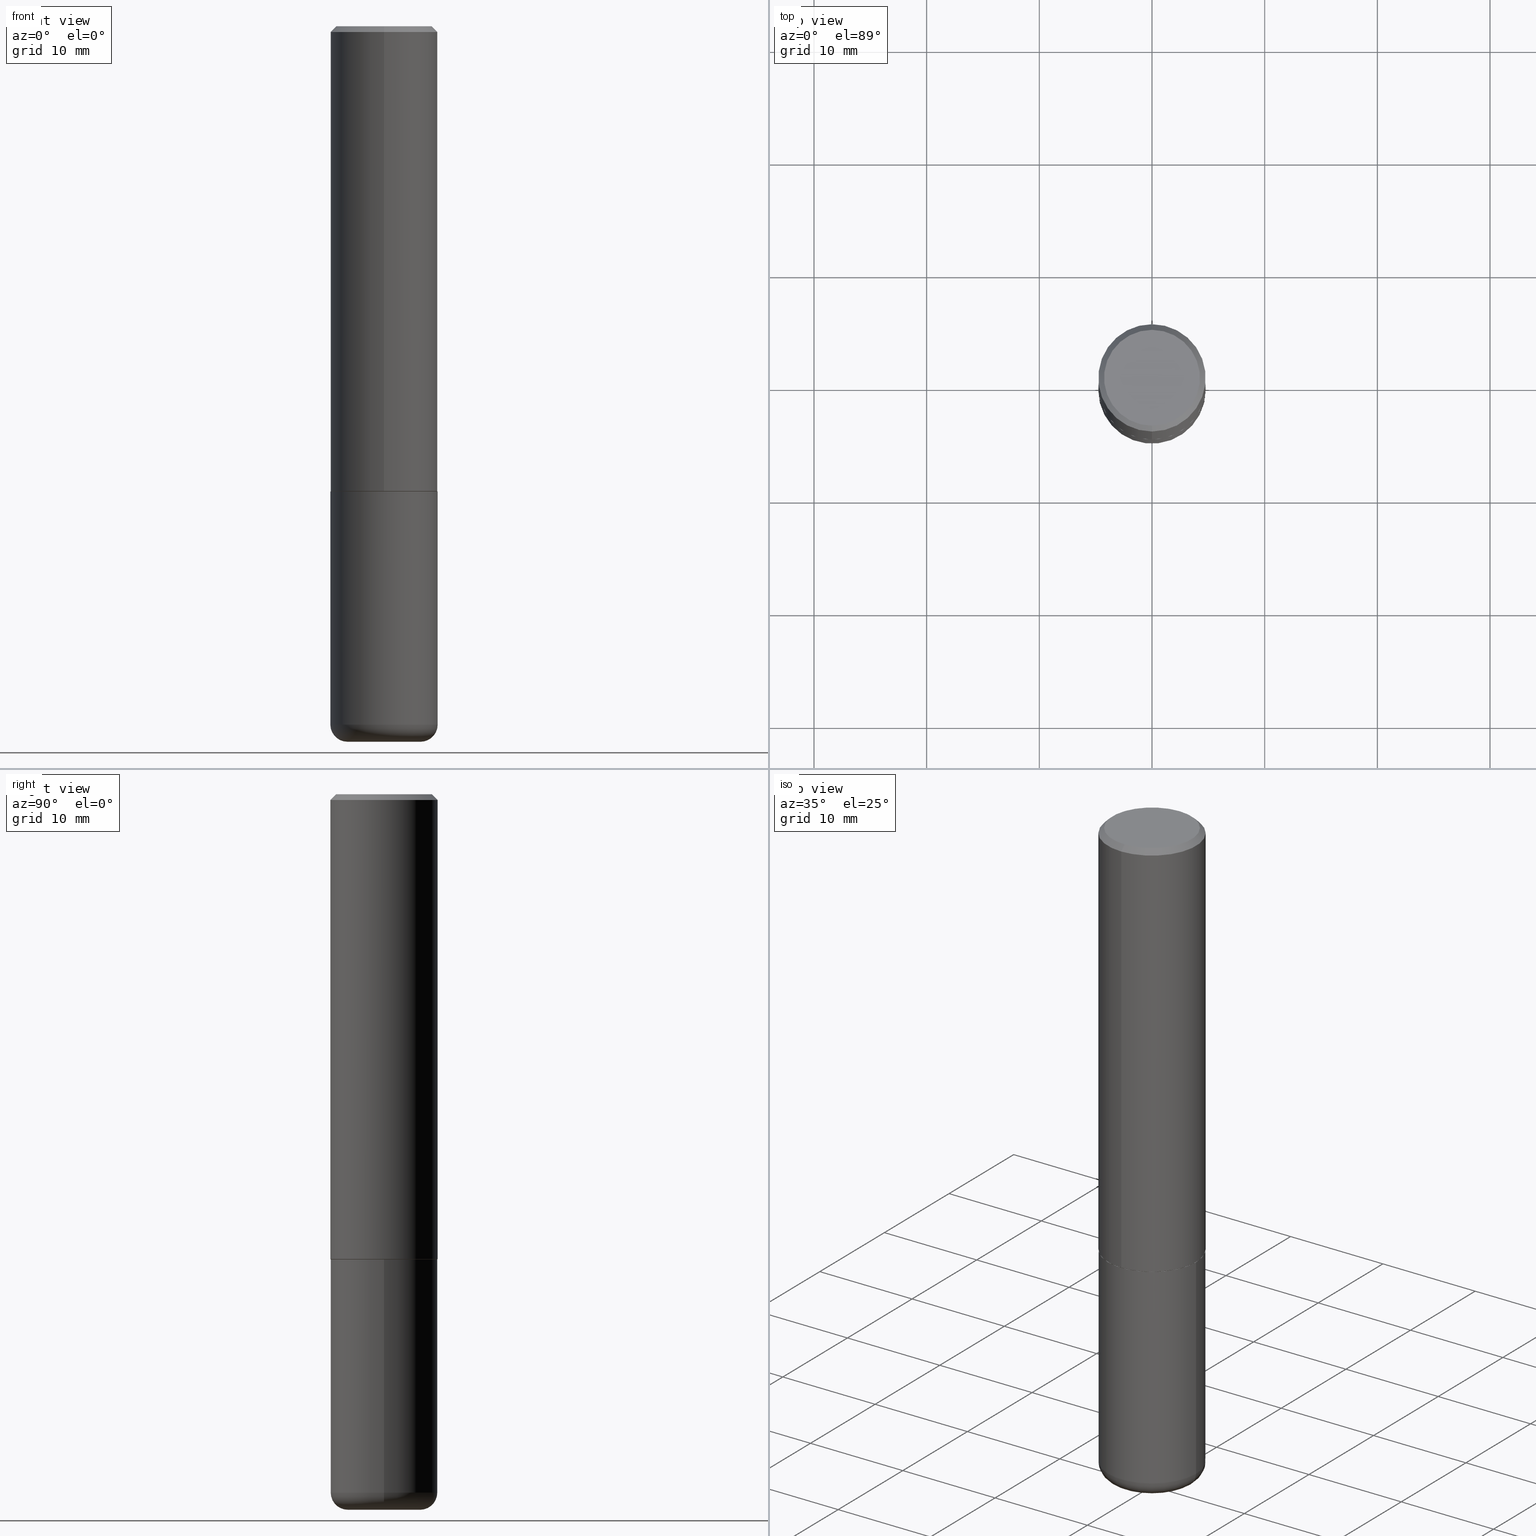
[diagram: canonical four-view strip — front | top / right | iso, engineering-drawing reading convention]
A machine part, canonical four-view strip (front | top / right | iso — engineering-drawing reading convention). The complete STEP part file that produces these views, byte-faithful:
ISO-10303-21;
HEADER;
FILE_DESCRIPTION (( 'STEP AP203' ),
    '1' );
FILE_NAME ('36113.STEP',
    '2024-03-01T15:43:17',
    ( '' ),
    ( '' ),
    'SwSTEP 2.0',
    'SolidWorks 2023',
    '' );
FILE_SCHEMA (( 'CONFIG_CONTROL_DESIGN' ));
ENDSEC;

DATA;
#1 = DIRECTION ( 'NONE',  ( -2.445663447522104049E-29, 3.491202601370310888E-15, 1.000000000000000000 ) ) ;
#2 = EDGE_CURVE ( 'NONE', #407, #122, #176, .T. ) ;
#3 = DIRECTION ( 'NONE',  ( -6.982962677686266711E-15, -1.000000000000000000, 3.491481338843145583E-15 ) ) ;
#4 = APPROVAL_PERSON_ORGANIZATION ( #184, #329, #110 ) ;
#5 = DIRECTION ( 'NONE',  ( -1.000000000000000000, 6.982962677686265922E-15, -4.876176775795935793E-29 ) ) ;
#6 = DIRECTION ( 'NONE',  ( 6.982962677686266711E-15, 1.000000000000000000, -3.483106191921935949E-15 ) ) ;
#7 = EDGE_CURVE ( 'NONE', #244, #278, #225, .T. ) ;
#8 = ORIENTED_EDGE ( 'NONE', *, *, #59, .F. ) ;
#9 = DIRECTION ( 'NONE',  ( 2.445663447522104049E-29, -3.491202601370310888E-15, -1.000000000000000000 ) ) ;
#10 = CARTESIAN_POINT ( 'NONE',  ( 5.966943887091733341E-29, -8.519214466777275048E-15, -2.440000000000000391 ) ) ;
#11 = APPROVAL_PERSON_ORGANIZATION ( #298, #113, #302 ) ;
#12 = CARTESIAN_POINT ( 'NONE',  ( 0.000000000000000000, 0.000000000000000000, 0.000000000000000000 ) ) ;
#13 = AXIS2_PLACEMENT_3D ( 'NONE', #318, #71, #196 ) ;
#14 = PERSON_AND_ORGANIZATION ( #106, #150 ) ;
#15 = DIRECTION ( 'NONE',  ( -6.982962677686266711E-15, -1.000000000000000000, 3.483106191921935949E-15 ) ) ;
#16 = ORIENTED_EDGE ( 'NONE', *, *, #228, .F. ) ;
#17 = DATE_AND_TIME ( #245, #137 ) ;
#18 = ADVANCED_BREP_SHAPE_REPRESENTATION ( '36113', ( #325, #330, #405 ), #183 ) ;
#19 = ORIENTED_EDGE ( 'NONE', *, *, #87, .T. ) ;
#20 = COORDINATED_UNIVERSAL_TIME_OFFSET ( 5, 0, .BEHIND. ) ;
#21 = EDGE_CURVE ( 'NONE', #107, #89, #211, .T. ) ;
#22 =( NAMED_UNIT ( * ) PLANE_ANGLE_UNIT ( ) SI_UNIT ( $, .RADIAN. ) );
#23 = ORIENTED_EDGE ( 'NONE', *, *, #239, .T. ) ;
#24 = CIRCLE ( 'NONE', #109, 0.1874999999999999722 ) ;
#25 = DIRECTION ( 'NONE',  ( 1.000000000000000000, -6.982962677686266711E-15, 4.876176775795935793E-29 ) ) ;
#26 = ORIENTED_EDGE ( 'NONE', *, *, #228, .T. ) ;
#27 = APPROVAL_DATE_TIME ( #57, #217 ) ;
#28 = CARTESIAN_POINT ( 'NONE',  ( 5.966943887091733341E-29, -8.519214466777275048E-15, -2.440000000000000391 ) ) ;
#29 = ORIENTED_EDGE ( 'NONE', *, *, #412, .F. ) ;
#30 = CARTESIAN_POINT ( 'NONE',  ( -1.286343374582161379E-15, -0.1875000000000000555, -0.01999999999999938979 ) ) ;
#31 = FACE_OUTER_BOUND ( 'NONE', #108, .T. ) ;
#32 = CARTESIAN_POINT ( 'NONE',  ( -1.309305502066136748E-15, -0.1875000000000058842, -1.623999999999999666 ) ) ;
#33 = DIRECTION ( 'NONE',  ( -2.445663447522104049E-29, 3.491202601370311283E-15, 1.000000000000000000 ) ) ;
#34 = DIRECTION ( 'NONE',  ( -2.445663447522104049E-29, 3.491202601370311283E-15, 1.000000000000000000 ) ) ;
#35 = CARTESIAN_POINT ( 'NONE',  ( 3.973886810050848091E-29, -5.673657175620113002E-15, -1.625000000000000222 ) ) ;
#36 = CARTESIAN_POINT ( 'NONE',  ( 3.974203102223419290E-29, -5.673204227226755539E-15, -1.625000000000000000 ) ) ;
#37 = CONICAL_SURFACE ( 'NONE', #328, 0.1864999999999999714, 0.7853981633976704346 ) ;
#38 = FACE_OUTER_BOUND ( 'NONE', #271, .T. ) ;
#39 = EDGE_CURVE ( 'NONE', #411, #182, #236, .T. ) ;
#40 = PLANE ( 'NONE',  #105 ) ;
#41 = ORIENTED_EDGE ( 'NONE', *, *, #239, .F. ) ;
#42 = CARTESIAN_POINT ( 'NONE',  ( 0.1875000000000000278, -6.982962677686288010E-15, -1.625000000000000222 ) ) ;
#43 = AXIS2_PLACEMENT_3D ( 'NONE', #332, #363, #15 ) ;
#44 = EDGE_CURVE ( 'NONE', #278, #182, #357, .T. ) ;
#45 = CIRCLE ( 'NONE', #187, 0.1275000000000000022 ) ;
#46 = PERSON_AND_ORGANIZATION_ROLE ( 'creator' ) ;
#47 = EDGE_LOOP ( 'NONE', ( #8, #237 ) ) ;
#48 = EDGE_CURVE ( 'NONE', #312, #135, #391, .T. ) ;
#49 = VERTEX_POINT ( 'NONE', #32 ) ;
#50 = PERSON_AND_ORGANIZATION_ROLE ( 'classification_officer' ) ;
#51 = CARTESIAN_POINT ( 'NONE',  ( 6.113672015462842613E-29, -8.728703347107864943E-15, -2.500000000000000000 ) ) ;
#52 = PRODUCT_DEFINITION ( 'UNKNOWN', '', #61, #322 ) ;
#53 = ORIENTED_EDGE ( 'NONE', *, *, #358, .T. ) ;
#54 = PERSON_AND_ORGANIZATION_ROLE ( 'design_supplier' ) ;
#55 = DIRECTION ( 'NONE',  ( -6.982962677686265922E-15, -1.000000000000000000, 3.491202601370310888E-15 ) ) ;
#56 = ORIENTED_EDGE ( 'NONE', *, *, #321, .T. ) ;
#57 = DATE_AND_TIME ( #344, #131 ) ;
#58 = CARTESIAN_POINT ( 'NONE',  ( -0.1875000000000000278, -5.764168191648507360E-15, -1.625000000000000222 ) ) ;
#59 = EDGE_CURVE ( 'NONE', #122, #407, #157, .T. ) ;
#60 = TOROIDAL_SURFACE ( 'NONE', #382, 0.1275000000000000022, 0.05999999999999994227 ) ;
#61 = PRODUCT_DEFINITION_FORMATION_WITH_SPECIFIED_SOURCE ( 'ANY', '', #303, .NOT_KNOWN. ) ;
#62 = ORIENTED_EDGE ( 'NONE', *, *, #59, .T. ) ;
#63 = CYLINDRICAL_SURFACE ( 'NONE', #130, 0.1874999999999999722 ) ;
#64 = ORIENTED_EDGE ( 'NONE', *, *, #168, .T. ) ;
#65 = FACE_OUTER_BOUND ( 'NONE', #409, .T. ) ;
#66 = CARTESIAN_POINT ( 'NONE',  ( 3.974203102223419290E-29, -5.673204227226755539E-15, -1.625000000000000000 ) ) ;
#67 = FACE_OUTER_BOUND ( 'NONE', #301, .T. ) ;
#68 = DIRECTION ( 'NONE',  ( 1.000000000000000000, -6.982962677686274599E-15, 0.000000000000000000 ) ) ;
#69 = EDGE_CURVE ( 'NONE', #182, #411, #293, .T. ) ;
#70 = DIRECTION ( 'NONE',  ( 1.000000000000000000, -6.982962677686263555E-15, 0.000000000000000000 ) ) ;
#71 = DIRECTION ( 'NONE',  ( -2.445468806185136597E-29, 3.491481338843145583E-15, 1.000000000000000000 ) ) ;
#72 = FACE_OUTER_BOUND ( 'NONE', #175, .T. ) ;
#73 = UNCERTAINTY_MEASURE_WITH_UNIT (LENGTH_MEASURE( 1.000000000000000082E-05 ), #304, 'distance_accuracy_value', 'NONE');
#74 = CARTESIAN_POINT ( 'NONE',  ( 4.891326895044218398E-31, -6.982405202740636519E-17, -0.02000000000000004205 ) ) ;
#75 = EDGE_CURVE ( 'NONE', #122, #49, #270, .T. ) ;
#76 = AXIS2_PLACEMENT_3D ( 'NONE', #350, #33, #190 ) ;
#77 = DIRECTION ( 'NONE',  ( -2.445663447522104049E-29, 3.491202601370311283E-15, 1.000000000000000000 ) ) ;
#78 = FACE_OUTER_BOUND ( 'NONE', #365, .T. ) ;
#79 = EDGE_LOOP ( 'NONE', ( #353, #343 ) ) ;
#80 = CARTESIAN_POINT ( 'NONE',  ( 1.169646248512448806E-15, 0.1674999999999998990, -5.378461426017720867E-16 ) ) ;
#81 = LOCAL_TIME ( 10, 43, 17.00000000000000000, #374 ) ;
#82 = FACE_OUTER_BOUND ( 'NONE', #167, .T. ) ;
#83 = CONICAL_SURFACE ( 'NONE', #346, 0.1874999999999999722, 0.7853981633974472798 ) ;
#84 = DIRECTION ( 'NONE',  ( -2.445468806185136597E-29, 3.491481338843145583E-15, 1.000000000000000000 ) ) ;
#85 = ORIENTED_EDGE ( 'NONE', *, *, #412, .T. ) ;
#86 = DATE_AND_TIME ( #275, #81 ) ;
#87 = EDGE_CURVE ( 'NONE', #90, #411, #126, .T. ) ;
#88 = ORIENTED_EDGE ( 'NONE', *, *, #75, .F. ) ;
#89 = VERTEX_POINT ( 'NONE', #159 ) ;
#90 = VERTEX_POINT ( 'NONE', #129 ) ;
#91 = PERSON_AND_ORGANIZATION ( #106, #150 ) ;
#92 = ORIENTED_EDGE ( 'NONE', *, *, #48, .T. ) ;
#93 = CC_DESIGN_PERSON_AND_ORGANIZATION_ASSIGNMENT ( #338, #50, ( #336 ) ) ;
#94 = DIRECTION ( 'NONE',  ( -2.445468806185136597E-29, 3.491481338843145583E-15, 1.000000000000000000 ) ) ;
#95 = DIRECTION ( 'NONE',  ( 0.000000000000000000, 0.000000000000000000, 1.000000000000000000 ) ) ;
#96 = CIRCLE ( 'NONE', #214, 0.1275000000000000022 ) ;
#97 = CARTESIAN_POINT ( 'NONE',  ( 0.1874999999999999722, -1.309305502066174811E-15, 9.142831454617378210E-30 ) ) ;
#98 = DIRECTION ( 'NONE',  ( -2.445468806185136597E-29, 3.491481338843145583E-15, 1.000000000000000000 ) ) ;
#99 = DIRECTION ( 'NONE',  ( 2.445663447522104049E-29, -3.491202601370311283E-15, -1.000000000000000000 ) ) ;
#100 = CIRCLE ( 'NONE', #355, 0.1875000000000002220 ) ;
#101 = DIRECTION ( 'NONE',  ( -2.445468806185136597E-29, 3.491481338843145583E-15, 1.000000000000000000 ) ) ;
#102 = DIRECTION ( 'NONE',  ( -2.445468806185136597E-29, 3.491481338843145583E-15, 1.000000000000000000 ) ) ;
#103 = DIRECTION ( 'NONE',  ( -2.445468806185136597E-29, 3.491481338843145583E-15, 1.000000000000000000 ) ) ;
#104 = DIRECTION ( 'NONE',  ( 1.000000000000000000, 0.000000000000000000, 0.000000000000000000 ) ) ;
#105 = AXIS2_PLACEMENT_3D ( 'NONE', #197, #396, #366 ) ;
#106 = PERSON ( 'UNSPECIFIED', 'UNSPECIFIED', 'UNSPECIFIED', ('UNSPECIFIED'), ('UNSPECIFIED'), ('UNSPECIFIED') ) ;
#107 = VERTEX_POINT ( 'NONE', #349 ) ;
#108 = EDGE_LOOP ( 'NONE', ( #333, #112, #114, #233 ) ) ;
#109 = AXIS2_PLACEMENT_3D ( 'NONE', #10, #102, #327 ) ;
#110 = APPROVAL_ROLE ( '' ) ;
#111 = EDGE_CURVE ( 'NONE', #107, #178, #96, .T. ) ;
#112 = ORIENTED_EDGE ( 'NONE', *, *, #397, .T. ) ;
#113 = APPROVAL ( #238, 'UNSPECIFIED' ) ;
#114 = ORIENTED_EDGE ( 'NONE', *, *, #21, .T. ) ;
#115 = APPROVAL_DATE_TIME ( #17, #113 ) ;
#116 = CONICAL_SURFACE ( 'NONE', #348, 0.1874999999999999722, 0.7853981633974472798 ) ;
#117 = CYLINDRICAL_SURFACE ( 'NONE', #164, 0.1874999999999999722 ) ;
#118 = ORIENTED_EDGE ( 'NONE', *, *, #393, .T. ) ;
#119 = APPROVAL_ROLE ( '' ) ;
#120 = CARTESIAN_POINT ( 'NONE',  ( 3.971757438775897765E-29, -5.669713024625386356E-15, -1.624000000000000110 ) ) ;
#121 = DIMENSIONAL_EXPONENTS ( 1.000000000000000000, 0.000000000000000000, 0.000000000000000000, 0.000000000000000000, 0.000000000000000000, 0.000000000000000000, 0.000000000000000000 ) ;
#122 = VERTEX_POINT ( 'NONE', #317 ) ;
#123 = LINE ( 'NONE', #372, #193 ) ;
#124 = CARTESIAN_POINT ( 'NONE',  ( -0.1275000000000000022, -7.613272478683147690E-15, -2.440000000000000391 ) ) ;
#125 = ORIENTED_EDGE ( 'NONE', *, *, #139, .T. ) ;
#126 = LINE ( 'NONE', #249, #265 ) ;
#127 = DIRECTION ( 'NONE',  ( -2.445663447522104049E-29, 3.491202601370311283E-15, 1.000000000000000000 ) ) ;
#128 = DIRECTION ( 'NONE',  ( 1.000000000000000000, -6.982962677686265133E-15, 4.883557194083112340E-29 ) ) ;
#129 = CARTESIAN_POINT ( 'NONE',  ( 1.332267629550208753E-15, 0.1874999999999945599, -1.624000000000000776 ) ) ;
#130 = AXIS2_PLACEMENT_3D ( 'NONE', #279, #98, #313 ) ;
#131 = LOCAL_TIME ( 10, 43, 17.00000000000000000, #213 ) ;
#132 = DIRECTION ( 'NONE',  ( -6.982962677686266711E-15, -1.000000000000000000, 3.483106191921935949E-15 ) ) ;
#133 = ADVANCED_FACE ( 'NONE', ( #31 ), #60, .T. ) ;
#134 = FACE_OUTER_BOUND ( 'NONE', #47, .T. ) ;
#135 = VERTEX_POINT ( 'NONE', #58 ) ;
#136 = AXIS2_PLACEMENT_3D ( 'NONE', #319, #413, #216 ) ;
#137 = LOCAL_TIME ( 10, 43, 17.00000000000000000, #151 ) ;
#138 = CARTESIAN_POINT ( 'NONE',  ( 1.325162202192626283E-15, 0.1864999999999943092, -1.625000000000000666 ) ) ;
#139 = EDGE_CURVE ( 'NONE', #178, #326, #368, .T. ) ;
#140 = CLOSED_SHELL ( 'NONE', ( #289, #248, #160, #364, #199, #269, #367, #306 ) ) ;
#141 = EDGE_CURVE ( 'NONE', #326, #89, #258, .T. ) ;
#142 = ORIENTED_EDGE ( 'NONE', *, *, #44, .T. ) ;
#143 = SECURITY_CLASSIFICATION_LEVEL ( 'unclassified' ) ;
#144 = DIRECTION ( 'NONE',  ( -2.445663447522104049E-29, 3.491202601370310888E-15, 1.000000000000000000 ) ) ;
#145 = ORIENTED_EDGE ( 'NONE', *, *, #168, .F. ) ;
#146 = PERSON_AND_ORGANIZATION ( #106, #150 ) ;
#147 = ORIENTED_EDGE ( 'NONE', *, *, #39, .F. ) ;
#148 = DATE_TIME_ROLE ( 'classification_date' ) ;
#149 = AXIS2_PLACEMENT_3D ( 'NONE', #80, #9, #261 ) ;
#150 = ORGANIZATION ( 'UNSPECIFIED', 'UNSPECIFIED', '' ) ;
#151 = COORDINATED_UNIVERSAL_TIME_OFFSET ( 5, 0, .BEHIND. ) ;
#152 = CARTESIAN_POINT ( 'NONE',  ( 4.891326895044218398E-31, -6.982405202740636519E-17, -0.02000000000000004205 ) ) ;
#153 = DIRECTION ( 'NONE',  ( -2.445663447522104049E-29, 3.491202601370311283E-15, 1.000000000000000000 ) ) ;
#154 = ORIENTED_EDGE ( 'NONE', *, *, #69, .T. ) ;
#155 = CYLINDRICAL_SURFACE ( 'NONE', #234, 0.1875000000000001110 ) ;
#156 = DIRECTION ( 'NONE',  ( -2.445468806185136877E-29, 3.491481338843145188E-15, 1.000000000000000000 ) ) ;
#157 = CIRCLE ( 'NONE', #262, 0.1864999999999999714 ) ;
#158 = DIRECTION ( 'NONE',  ( -2.445468806185136597E-29, 3.491481338843145583E-15, 1.000000000000000000 ) ) ;
#159 = CARTESIAN_POINT ( 'NONE',  ( 0.1874999999999999722, -9.828519968843450056E-15, -2.440000000000000391 ) ) ;
#160 = ADVANCED_FACE ( 'NONE', ( #257 ), #83, .T. ) ;
#161 = CARTESIAN_POINT ( 'NONE',  ( 0.1275000000000000022, -9.409542208182273423E-15, -2.440000000000000391 ) ) ;
#162 = DIRECTION ( 'NONE',  ( 2.438088387897960049E-29, -3.491481338843145188E-15, -1.000000000000000000 ) ) ;
#163 = AXIS2_PLACEMENT_3D ( 'NONE', #169, #230, #294 ) ;
#164 = AXIS2_PLACEMENT_3D ( 'NONE', #12, #84, #25 ) ;
#165 = DIRECTION ( 'NONE',  ( -2.445663447522104049E-29, 3.491202601370311283E-15, 1.000000000000000000 ) ) ;
#166 = CARTESIAN_POINT ( 'NONE',  ( 4.891326895044218398E-31, -6.982405202740636519E-17, -0.02000000000000004205 ) ) ;
#167 = EDGE_LOOP ( 'NONE', ( #145, #347, #206, #280 ) ) ;
#168 = EDGE_CURVE ( 'NONE', #326, #135, #189, .T. ) ;
#169 = CARTESIAN_POINT ( 'NONE',  ( 3.974203102223419290E-29, -5.673204227226755539E-15, -1.625000000000000000 ) ) ;
#170 = AXIS2_PLACEMENT_3D ( 'NONE', #66, #360, #222 ) ;
#171 = ADVANCED_FACE ( 'NONE', ( #65 ), #63, .T. ) ;
#172 = APPLICATION_CONTEXT ( 'configuration controlled 3d designs of mechanical parts and assemblies' ) ;
#173 = CC_DESIGN_PERSON_AND_ORGANIZATION_ASSIGNMENT ( #309, #54, ( #61 ) ) ;
#174 = ORIENTED_EDGE ( 'NONE', *, *, #44, .F. ) ;
#175 = EDGE_LOOP ( 'NONE', ( #92, #53 ) ) ;
#176 = CIRCLE ( 'NONE', #170, 0.1864999999999999714 ) ;
#177 = PERSON_AND_ORGANIZATION_ROLE ( 'design_owner' ) ;
#178 = VERTEX_POINT ( 'NONE', #410 ) ;
#179 = AXIS2_PLACEMENT_3D ( 'NONE', #161, #3, #68 ) ;
#180 = DATE_AND_TIME ( #340, #389 ) ;
#181 =( LENGTH_UNIT ( ) NAMED_UNIT ( * ) SI_UNIT ( $, .METRE. ) );
#182 = VERTEX_POINT ( 'NONE', #30 ) ;
#183 =( GEOMETRIC_REPRESENTATION_CONTEXT ( 3 ) GLOBAL_UNCERTAINTY_ASSIGNED_CONTEXT ( ( #73 ) ) GLOBAL_UNIT_ASSIGNED_CONTEXT ( ( #304, #22, #379 ) ) REPRESENTATION_CONTEXT ( 'NONE', 'WORKASPACE' ) );
#184 = PERSON_AND_ORGANIZATION ( #106, #150 ) ;
#185 = AXIS2_PLACEMENT_3D ( 'NONE', #124, #284, #310 ) ;
#186 = CC_DESIGN_DATE_AND_TIME_ASSIGNMENT ( #180, #148, ( #336 ) ) ;
#187 = AXIS2_PLACEMENT_3D ( 'NONE', #51, #345, #341 ) ;
#188 = DIRECTION ( 'NONE',  ( -2.445663447522104049E-29, 3.491202601370310888E-15, 1.000000000000000000 ) ) ;
#189 = LINE ( 'NONE', #255, #201 ) ;
#190 = DIRECTION ( 'NONE',  ( -6.982962677686265922E-15, -1.000000000000000000, 2.913971193241877216E-15 ) ) ;
#191 = CARTESIAN_POINT ( 'NONE',  ( 5.966943887091733341E-29, -8.519214466777275048E-15, -2.440000000000000391 ) ) ;
#192 = PRODUCT_DEFINITION_SHAPE ( 'NONE', 'NONE',  #52 ) ;
#193 = VECTOR ( 'NONE', #403, 39.37007874015748143 ) ;
#194 = CARTESIAN_POINT ( 'NONE',  ( -1.286343374582161379E-15, -0.1875000000000000555, -0.01999999999999938979 ) ) ;
#195 = CARTESIAN_POINT ( 'NONE',  ( 0.000000000000000000, 0.000000000000000000, 0.000000000000000000 ) ) ;
#196 = DIRECTION ( 'NONE',  ( 1.000000000000000000, -6.982962677686266711E-15, 0.000000000000000000 ) ) ;
#197 = CARTESIAN_POINT ( 'NONE',  ( 6.113672015462842613E-29, -8.728703347107864943E-15, -2.500000000000000000 ) ) ;
#198 = DIRECTION ( 'NONE',  ( -2.445468806185136597E-29, 3.491481338843145583E-15, 1.000000000000000000 ) ) ;
#199 = ADVANCED_FACE ( 'NONE', ( #388 ), #155, .T. ) ;
#200 = PLANE ( 'NONE',  #149 ) ;
#201 = VECTOR ( 'NONE', #390, 39.37007874015748143 ) ;
#202 = CC_DESIGN_APPROVAL ( #217, ( #336 ) ) ;
#203 = APPLICATION_PROTOCOL_DEFINITION ( 'international standard', 'config_control_design', 1994, #387 ) ;
#204 = ORIENTED_EDGE ( 'NONE', *, *, #7, .T. ) ;
#205 = VECTOR ( 'NONE', #215, 39.37007874015748143 ) ;
#206 = ORIENTED_EDGE ( 'NONE', *, *, #371, .T. ) ;
#207 = APPROVAL_DATE_TIME ( #86, #329 ) ;
#208 = EDGE_LOOP ( 'NONE', ( #204, #26 ) ) ;
#209 = DATE_TIME_ROLE ( 'creation_date' ) ;
#210 = CARTESIAN_POINT ( 'NONE',  ( 1.328714915871427774E-15, 0.1864999999999943092, -1.625000000000000666 ) ) ;
#211 = CIRCLE ( 'NONE', #179, 0.05999999999999994227 ) ;
#212 = ORIENTED_EDGE ( 'NONE', *, *, #87, .F. ) ;
#213 = COORDINATED_UNIVERSAL_TIME_OFFSET ( 5, 0, .BEHIND. ) ;
#214 = AXIS2_PLACEMENT_3D ( 'NONE', #252, #158, #285 ) ;
#215 = DIRECTION ( 'NONE',  ( -4.937700262165644559E-15, -0.7071067811867021158, 0.7071067811863929187 ) ) ;
#216 = DIRECTION ( 'NONE',  ( -6.982962677686265922E-15, -1.000000000000000000, 3.491202601370310888E-15 ) ) ;
#217 = APPROVAL ( #408, 'UNSPECIFIED' ) ;
#218 = DIRECTION ( 'NONE',  ( -2.445663447522104049E-29, 3.491202601370311283E-15, 1.000000000000000000 ) ) ;
#219 = CARTESIAN_POINT ( 'NONE',  ( 5.966943887091733341E-29, -8.519214466777275048E-15, -2.440000000000000391 ) ) ;
#220 = AXIS2_PLACEMENT_3D ( 'NONE', #191, #103, #362 ) ;
#221 = CC_DESIGN_APPROVAL ( #113, ( #52 ) ) ;
#222 = DIRECTION ( 'NONE',  ( -6.982962677686265922E-15, -1.000000000000000000, 2.929595703661408850E-15 ) ) ;
#223 = CLOSED_SHELL ( 'NONE', ( #171, #256, #351, #377, #133, #291 ) ) ;
#224 = FACE_OUTER_BOUND ( 'NONE', #79, .T. ) ;
#225 = CIRCLE ( 'NONE', #226, 0.1674999999999998990 ) ;
#226 = AXIS2_PLACEMENT_3D ( 'NONE', #418, #34, #386 ) ;
#227 = LINE ( 'NONE', #138, #335 ) ;
#228 = EDGE_CURVE ( 'NONE', #278, #244, #316, .T. ) ;
#229 = AXIS2_PLACEMENT_3D ( 'NONE', #28, #94, #70 ) ;
#230 = DIRECTION ( 'NONE',  ( -2.445663447522104049E-29, 3.491202601370311283E-15, 1.000000000000000000 ) ) ;
#231 = EDGE_LOOP ( 'NONE', ( #212, #23, #305, #147 ) ) ;
#232 = MECHANICAL_CONTEXT ( 'NONE', #172, 'mechanical' ) ;
#233 = ORIENTED_EDGE ( 'NONE', *, *, #141, .F. ) ;
#234 = AXIS2_PLACEMENT_3D ( 'NONE', #195, #281, #356 ) ;
#235 = APPROVAL_PERSON_ORGANIZATION ( #91, #217, #119 ) ;
#236 = CIRCLE ( 'NONE', #352, 0.1874999999999999722 ) ;
#237 = ORIENTED_EDGE ( 'NONE', *, *, #2, .F. ) ;
#238 = APPROVAL_STATUS ( 'not_yet_approved' ) ;
#239 = EDGE_CURVE ( 'NONE', #90, #49, #414, .T. ) ;
#240 = ORIENTED_EDGE ( 'NONE', *, *, #315, .T. ) ;
#241 = APPROVAL_STATUS ( 'not_yet_approved' ) ;
#242 = LOCAL_TIME ( 10, 43, 17.00000000000000000, #20 ) ;
#243 = LINE ( 'NONE', #253, #266 ) ;
#244 = VERTEX_POINT ( 'NONE', #314 ) ;
#245 = CALENDAR_DATE ( 2024, 1, 3 ) ;
#246 = DIRECTION ( 'NONE',  ( -6.982962677686265922E-15, -1.000000000000000000, 2.913971193241877216E-15 ) ) ;
#247 = ORIENTED_EDGE ( 'NONE', *, *, #75, .T. ) ;
#248 = ADVANCED_FACE ( 'NONE', ( #354 ), #283, .T. ) ;
#249 = CARTESIAN_POINT ( 'NONE',  ( 1.332267629550188440E-15, 0.1875000000000001110, -6.546004877569338093E-16 ) ) ;
#250 = CARTESIAN_POINT ( 'NONE',  ( 3.974203102223419851E-29, -5.673204227226756328E-15, -1.625000000000000222 ) ) ;
#251 = ORIENTED_EDGE ( 'NONE', *, *, #39, .T. ) ;
#252 = CARTESIAN_POINT ( 'NONE',  ( 6.113672015462842613E-29, -8.728703347107864943E-15, -2.500000000000000000 ) ) ;
#253 = CARTESIAN_POINT ( 'NONE',  ( -1.309305502066175797E-15, -0.1875000000000001110, 6.546004877569338093E-16 ) ) ;
#254 = DIRECTION ( 'NONE',  ( -6.982962677686266711E-15, -1.000000000000000000, 3.491202601370311677E-15 ) ) ;
#255 = CARTESIAN_POINT ( 'NONE',  ( -0.1874999999999999722, 1.332267629550187651E-15, -9.223003294227946589E-30 ) ) ;
#256 = ADVANCED_FACE ( 'NONE', ( #385 ), #404, .T. ) ;
#257 = FACE_OUTER_BOUND ( 'NONE', #378, .T. ) ;
#258 = CIRCLE ( 'NONE', #229, 0.1874999999999999722 ) ;
#259 = CARTESIAN_POINT ( 'NONE',  ( -1.217738394604445850E-15, -0.1674999999999998990, 6.786370219850360017E-16 ) ) ;
#260 = ORIENTED_EDGE ( 'NONE', *, *, #393, .F. ) ;
#261 = DIRECTION ( 'NONE',  ( 6.982962677686265922E-15, 1.000000000000000000, -3.491202601370310888E-15 ) ) ;
#262 = AXIS2_PLACEMENT_3D ( 'NONE', #36, #165, #342 ) ;
#263 = AXIS2_PLACEMENT_3D ( 'NONE', #361, #198, #324 ) ;
#264 = DIRECTION ( 'NONE',  ( 5.024295867789177050E-15, 0.7071067811867068897, 0.7071067811863879227 ) ) ;
#265 = VECTOR ( 'NONE', #1, 39.37007874015748143 ) ;
#266 = VECTOR ( 'NONE', #144, 39.37007874015748143 ) ;
#267 = PERSON_AND_ORGANIZATION_ROLE ( 'creator' ) ;
#268 = ORIENTED_EDGE ( 'NONE', *, *, #384, .F. ) ;
#269 = ADVANCED_FACE ( 'NONE', ( #67 ), #415, .T. ) ;
#270 = LINE ( 'NONE', #380, #205 ) ;
#271 = EDGE_LOOP ( 'NONE', ( #174, #339, #118, #251 ) ) ;
#272 = PERSON_AND_ORGANIZATION ( #106, #150 ) ;
#273 = CC_DESIGN_DATE_AND_TIME_ASSIGNMENT ( #334, #209, ( #52 ) ) ;
#274 = ORIENTED_EDGE ( 'NONE', *, *, #321, .F. ) ;
#275 = CALENDAR_DATE ( 2024, 1, 3 ) ;
#276 = AXIS2_PLACEMENT_3D ( 'NONE', #35, #162, #5 ) ;
#277 = CARTESIAN_POINT ( 'NONE',  ( 1.309305502066175205E-15, 0.1874999999999999167, -0.02000000000000069431 ) ) ;
#278 = VERTEX_POINT ( 'NONE', #259 ) ;
#279 = CARTESIAN_POINT ( 'NONE',  ( 0.000000000000000000, 0.000000000000000000, 0.000000000000000000 ) ) ;
#280 = ORIENTED_EDGE ( 'NONE', *, *, #358, .F. ) ;
#281 = DIRECTION ( 'NONE',  ( -2.445663447522104049E-29, 3.491202601370311283E-15, 1.000000000000000000 ) ) ;
#282 = AXIS2_PLACEMENT_3D ( 'NONE', #250, #188, #55 ) ;
#283 = CYLINDRICAL_SURFACE ( 'NONE', #296, 0.1875000000000001110 ) ;
#284 = DIRECTION ( 'NONE',  ( 7.105427357601001859E-15, 1.000000000000000000, -3.491481338843145583E-15 ) ) ;
#285 = DIRECTION ( 'NONE',  ( 1.000000000000000000, -6.982962677686267499E-15, 0.000000000000000000 ) ) ;
#286 = CC_DESIGN_PERSON_AND_ORGANIZATION_ASSIGNMENT ( #146, #267, ( #52 ) ) ;
#287 = CARTESIAN_POINT ( 'NONE',  ( 3.974203102223419290E-29, -5.673204227226755539E-15, -1.625000000000000000 ) ) ;
#288 = CC_DESIGN_APPROVAL ( #329, ( #61 ) ) ;
#289 = ADVANCED_FACE ( 'NONE', ( #78 ), #37, .T. ) ;
#290 = DIRECTION ( 'NONE',  ( 2.445663447522104049E-29, -3.491202601370311283E-15, -1.000000000000000000 ) ) ;
#291 = ADVANCED_FACE ( 'NONE', ( #224 ), #40, .T. ) ;
#292 = FACE_OUTER_BOUND ( 'NONE', #208, .T. ) ;
#293 = CIRCLE ( 'NONE', #43, 0.1874999999999999722 ) ;
#294 = DIRECTION ( 'NONE',  ( -6.982962677686265922E-15, -1.000000000000000000, 2.929595703661408850E-15 ) ) ;
#295 = CC_DESIGN_PERSON_AND_ORGANIZATION_ASSIGNMENT ( #272, #46, ( #61 ) ) ;
#296 = AXIS2_PLACEMENT_3D ( 'NONE', #417, #127, #254 ) ;
#297 = ORIENTED_EDGE ( 'NONE', *, *, #48, .F. ) ;
#298 = PERSON_AND_ORGANIZATION ( #106, #150 ) ;
#299 = APPLICATION_PROTOCOL_DEFINITION ( 'international standard', 'config_control_design', 1994, #172 ) ;
#300 = CC_DESIGN_PERSON_AND_ORGANIZATION_ASSIGNMENT ( #14, #177, ( #303 ) ) ;
#301 = EDGE_LOOP ( 'NONE', ( #274, #392, #247, #41 ) ) ;
#302 = APPROVAL_ROLE ( '' ) ;
#303 = PRODUCT ( '36113', '36113', '', ( #232 ) ) ;
#304 =( CONVERSION_BASED_UNIT ( 'INCH', #311 ) LENGTH_UNIT ( ) NAMED_UNIT ( #121 ) );
#305 = ORIENTED_EDGE ( 'NONE', *, *, #384, .T. ) ;
#306 = ADVANCED_FACE ( 'NONE', ( #292 ), #200, .F. ) ;
#307 = CC_DESIGN_SECURITY_CLASSIFICATION ( #336, ( #61 ) ) ;
#308 = ORIENTED_EDGE ( 'NONE', *, *, #21, .F. ) ;
#309 = PERSON_AND_ORGANIZATION ( #106, #150 ) ;
#310 = DIRECTION ( 'NONE',  ( -1.000000000000000000, 7.105427357600997914E-15, 0.000000000000000000 ) ) ;
#311 = LENGTH_MEASURE_WITH_UNIT ( LENGTH_MEASURE( 0.02539999999999999897 ), #181 );
#312 = VERTEX_POINT ( 'NONE', #42 ) ;
#313 = DIRECTION ( 'NONE',  ( 1.000000000000000000, -6.982962677686266711E-15, 4.876176775795935793E-29 ) ) ;
#314 = CARTESIAN_POINT ( 'NONE',  ( 1.239475875289311907E-15, 0.1674999999999998990, -4.909158494740175798E-16 ) ) ;
#315 = EDGE_CURVE ( 'NONE', #89, #326, #24, .T. ) ;
#316 = CIRCLE ( 'NONE', #136, 0.1674999999999998990 ) ;
#317 = CARTESIAN_POINT ( 'NONE',  ( -1.302322539388448565E-15, -0.1865000000000056335, -1.624999999999999556 ) ) ;
#318 = CARTESIAN_POINT ( 'NONE',  ( 3.973886810050848091E-29, -5.673657175620113002E-15, -1.625000000000000222 ) ) ;
#319 = CARTESIAN_POINT ( 'NONE',  ( -2.295514049680946619E-45, 3.276863229013765432E-31, 9.386058625550929724E-17 ) ) ;
#320 = PLANE ( 'NONE',  #276 ) ;
#321 = EDGE_CURVE ( 'NONE', #407, #90, #227, .T. ) ;
#322 = DESIGN_CONTEXT ( 'detailed design', #387, 'design' ) ;
#323 = DIRECTION ( 'NONE',  ( -4.851104656540958753E-15, -0.7071067811865492381, -0.7071067811865457964 ) ) ;
#324 = DIRECTION ( 'NONE',  ( 1.000000000000000000, -6.982962677686266711E-15, 0.000000000000000000 ) ) ;
#325 = MANIFOLD_SOLID_BREP ( 'Body-Move/Copy2[1]', #223 ) ;
#326 = VERTEX_POINT ( 'NONE', #359 ) ;
#327 = DIRECTION ( 'NONE',  ( 1.000000000000000000, -6.982962677686263555E-15, 0.000000000000000000 ) ) ;
#328 = AXIS2_PLACEMENT_3D ( 'NONE', #287, #77, #394 ) ;
#329 = APPROVAL ( #241, 'UNSPECIFIED' ) ;
#330 = MANIFOLD_SOLID_BREP ( 'Body-Move/Copy2[2]', #140 ) ;
#331 = VECTOR ( 'NONE', #323, 39.37007874015748143 ) ;
#332 = CARTESIAN_POINT ( 'NONE',  ( 4.891326895044218398E-31, -6.982405202740636519E-17, -0.02000000000000004205 ) ) ;
#333 = ORIENTED_EDGE ( 'NONE', *, *, #139, .F. ) ;
#334 = DATE_AND_TIME ( #400, #242 ) ;
#335 = VECTOR ( 'NONE', #264, 39.37007874015748854 ) ;
#336 = SECURITY_CLASSIFICATION ( '', '', #143 ) ;
#337 = ORIENTED_EDGE ( 'NONE', *, *, #69, .F. ) ;
#338 = PERSON_AND_ORGANIZATION ( #106, #150 ) ;
#339 = ORIENTED_EDGE ( 'NONE', *, *, #7, .F. ) ;
#340 = CALENDAR_DATE ( 2024, 1, 3 ) ;
#341 = DIRECTION ( 'NONE',  ( 1.000000000000000000, -6.982962677686267499E-15, 0.000000000000000000 ) ) ;
#342 = DIRECTION ( 'NONE',  ( -6.982962677686265922E-15, -1.000000000000000000, 2.929595703661408850E-15 ) ) ;
#343 = ORIENTED_EDGE ( 'NONE', *, *, #397, .F. ) ;
#344 = CALENDAR_DATE ( 2024, 1, 3 ) ;
#345 = DIRECTION ( 'NONE',  ( -2.445468806185136597E-29, 3.491481338843145583E-15, 1.000000000000000000 ) ) ;
#346 = AXIS2_PLACEMENT_3D ( 'NONE', #152, #99, #383 ) ;
#347 = ORIENTED_EDGE ( 'NONE', *, *, #141, .T. ) ;
#348 = AXIS2_PLACEMENT_3D ( 'NONE', #166, #290, #6 ) ;
#349 = CARTESIAN_POINT ( 'NONE',  ( 0.1275000000000000022, -9.619031088512863317E-15, -2.500000000000000000 ) ) ;
#350 = CARTESIAN_POINT ( 'NONE',  ( 3.971757438775897765E-29, -5.669713024625386356E-15, -1.624000000000000110 ) ) ;
#351 = ADVANCED_FACE ( 'NONE', ( #72 ), #320, .F. ) ;
#352 = AXIS2_PLACEMENT_3D ( 'NONE', #74, #218, #132 ) ;
#353 = ORIENTED_EDGE ( 'NONE', *, *, #111, .F. ) ;
#354 = FACE_OUTER_BOUND ( 'NONE', #401, .T. ) ;
#355 = AXIS2_PLACEMENT_3D ( 'NONE', #120, #153, #246 ) ;
#356 = DIRECTION ( 'NONE',  ( -6.982962677686266711E-15, -1.000000000000000000, 3.491202601370311677E-15 ) ) ;
#357 = LINE ( 'NONE', #194, #331 ) ;
#358 = EDGE_CURVE ( 'NONE', #135, #312, #369, .T. ) ;
#359 = CARTESIAN_POINT ( 'NONE',  ( -0.1874999999999999722, -7.186946837227088777E-15, -2.440000000000000391 ) ) ;
#360 = DIRECTION ( 'NONE',  ( -2.445663447522104049E-29, 3.491202601370311283E-15, 1.000000000000000000 ) ) ;
#361 = CARTESIAN_POINT ( 'NONE',  ( 3.973886810050848091E-29, -5.673657175620113002E-15, -1.625000000000000222 ) ) ;
#362 = DIRECTION ( 'NONE',  ( 1.000000000000000000, -6.982962677686265133E-15, 4.883557194083112340E-29 ) ) ;
#363 = DIRECTION ( 'NONE',  ( -2.445663447522104049E-29, 3.491202601370311283E-15, 1.000000000000000000 ) ) ;
#364 = ADVANCED_FACE ( 'NONE', ( #38 ), #116, .T. ) ;
#365 = EDGE_LOOP ( 'NONE', ( #62, #56, #29, #88 ) ) ;
#366 = DIRECTION ( 'NONE',  ( -1.000000000000000000, 6.982962677686265922E-15, -4.876176775795935793E-29 ) ) ;
#367 = ADVANCED_FACE ( 'NONE', ( #134 ), #406, .F. ) ;
#368 = CIRCLE ( 'NONE', #185, 0.05999999999999994227 ) ;
#369 = CIRCLE ( 'NONE', #263, 0.1875000000000000278 ) ;
#370 = LINE ( 'NONE', #97, #375 ) ;
#371 = EDGE_CURVE ( 'NONE', #89, #312, #370, .T. ) ;
#372 = CARTESIAN_POINT ( 'NONE',  ( 1.309305502066175205E-15, 0.1874999999999999167, -0.02000000000000069431 ) ) ;
#373 = EDGE_LOOP ( 'NONE', ( #395, #125, #399, #308 ) ) ;
#374 = COORDINATED_UNIVERSAL_TIME_OFFSET ( 5, 0, .BEHIND. ) ;
#375 = VECTOR ( 'NONE', #156, 39.37007874015748143 ) ;
#376 = ORIENTED_EDGE ( 'NONE', *, *, #371, .F. ) ;
#377 = ADVANCED_FACE ( 'NONE', ( #82 ), #117, .T. ) ;
#378 = EDGE_LOOP ( 'NONE', ( #16, #142, #154, #260 ) ) ;
#379 =( NAMED_UNIT ( * ) SI_UNIT ( $, .STERADIAN. ) SOLID_ANGLE_UNIT ( ) );
#380 = CARTESIAN_POINT ( 'NONE',  ( -1.302322539388448565E-15, -0.1865000000000056335, -1.624999999999999556 ) ) ;
#381 = CARTESIAN_POINT ( 'NONE',  ( 0.000000000000000000, 0.000000000000000000, 0.000000000000000000 ) ) ;
#382 = AXIS2_PLACEMENT_3D ( 'NONE', #219, #101, #128 ) ;
#383 = DIRECTION ( 'NONE',  ( 6.982962677686266711E-15, 1.000000000000000000, -3.483106191921935949E-15 ) ) ;
#384 = EDGE_CURVE ( 'NONE', #49, #182, #243, .T. ) ;
#385 = FACE_OUTER_BOUND ( 'NONE', #373, .T. ) ;
#386 = DIRECTION ( 'NONE',  ( -6.982962677686265922E-15, -1.000000000000000000, 3.491202601370310888E-15 ) ) ;
#387 = APPLICATION_CONTEXT ( 'configuration controlled 3d designs of mechanical parts and assemblies' ) ;
#388 = FACE_OUTER_BOUND ( 'NONE', #231, .T. ) ;
#389 = LOCAL_TIME ( 10, 43, 17.00000000000000000, #402 ) ;
#390 = DIRECTION ( 'NONE',  ( -2.445468806185136877E-29, 3.491481338843145188E-15, 1.000000000000000000 ) ) ;
#391 = CIRCLE ( 'NONE', #13, 0.1875000000000000278 ) ;
#392 = ORIENTED_EDGE ( 'NONE', *, *, #2, .T. ) ;
#393 = EDGE_CURVE ( 'NONE', #244, #411, #123, .T. ) ;
#394 = DIRECTION ( 'NONE',  ( -6.982962677686265922E-15, -1.000000000000000000, 2.929595703661408850E-15 ) ) ;
#395 = ORIENTED_EDGE ( 'NONE', *, *, #111, .T. ) ;
#396 = DIRECTION ( 'NONE',  ( 2.438088387897960049E-29, -3.491481338843145188E-15, -1.000000000000000000 ) ) ;
#397 = EDGE_CURVE ( 'NONE', #178, #107, #45, .T. ) ;
#398 = SHAPE_DEFINITION_REPRESENTATION ( #192, #18 ) ;
#399 = ORIENTED_EDGE ( 'NONE', *, *, #315, .F. ) ;
#400 = CALENDAR_DATE ( 2024, 1, 3 ) ;
#401 = EDGE_LOOP ( 'NONE', ( #85, #19, #337, #268 ) ) ;
#402 = COORDINATED_UNIVERSAL_TIME_OFFSET ( 5, 0, .BEHIND. ) ;
#403 = DIRECTION ( 'NONE',  ( 4.937700262164542520E-15, 0.7071067811865443531, -0.7071067811865506814 ) ) ;
#404 = TOROIDAL_SURFACE ( 'NONE', #220, 0.1275000000000000022, 0.05999999999999994227 ) ;
#405 = AXIS2_PLACEMENT_3D ( 'NONE', #381, #95, #104 ) ;
#406 = PLANE ( 'NONE',  #282 ) ;
#407 = VERTEX_POINT ( 'NONE', #210 ) ;
#408 = APPROVAL_STATUS ( 'not_yet_approved' ) ;
#409 = EDGE_LOOP ( 'NONE', ( #240, #64, #297, #376 ) ) ;
#410 = CARTESIAN_POINT ( 'NONE',  ( -0.1275000000000000022, -7.504854098120412392E-15, -2.500000000000000000 ) ) ;
#411 = VERTEX_POINT ( 'NONE', #277 ) ;
#412 = EDGE_CURVE ( 'NONE', #49, #90, #100, .T. ) ;
#413 = DIRECTION ( 'NONE',  ( -2.445663447522104049E-29, 3.491202601370311283E-15, 1.000000000000000000 ) ) ;
#414 = CIRCLE ( 'NONE', #76, 0.1875000000000002220 ) ;
#415 = CONICAL_SURFACE ( 'NONE', #163, 0.1864999999999999714, 0.7853981633976704346 ) ;
#416 = PRODUCT_RELATED_PRODUCT_CATEGORY ( 'detail', '', ( #303 ) ) ;
#417 = CARTESIAN_POINT ( 'NONE',  ( 0.000000000000000000, 0.000000000000000000, 0.000000000000000000 ) ) ;
#418 = CARTESIAN_POINT ( 'NONE',  ( -2.295514049680946619E-45, 3.276863229013765432E-31, 9.386058625550929724E-17 ) ) ;
ENDSEC;
END-ISO-10303-21;
